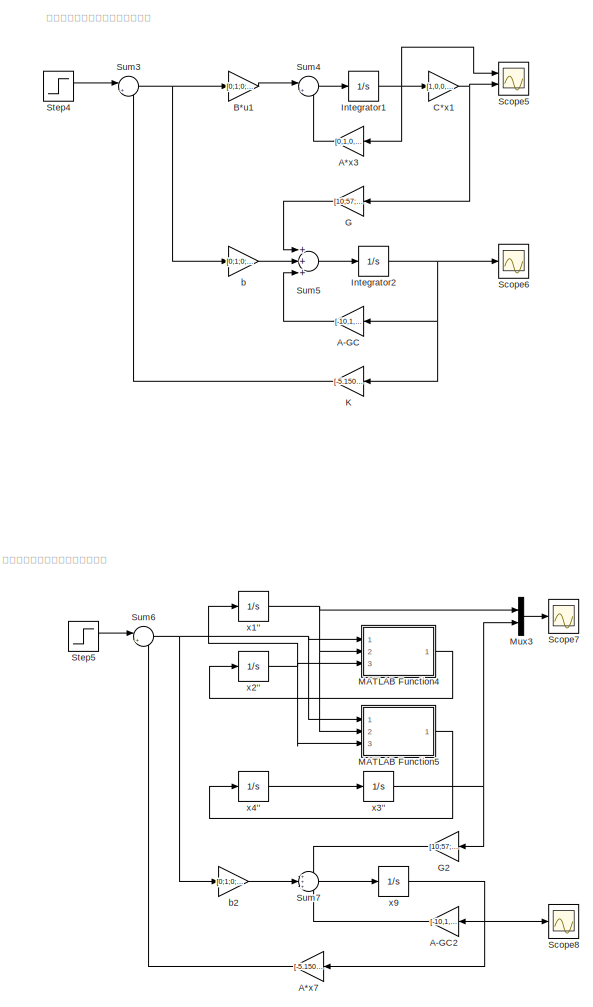
[diagram: root canvas - part 1/4, center side, full height]
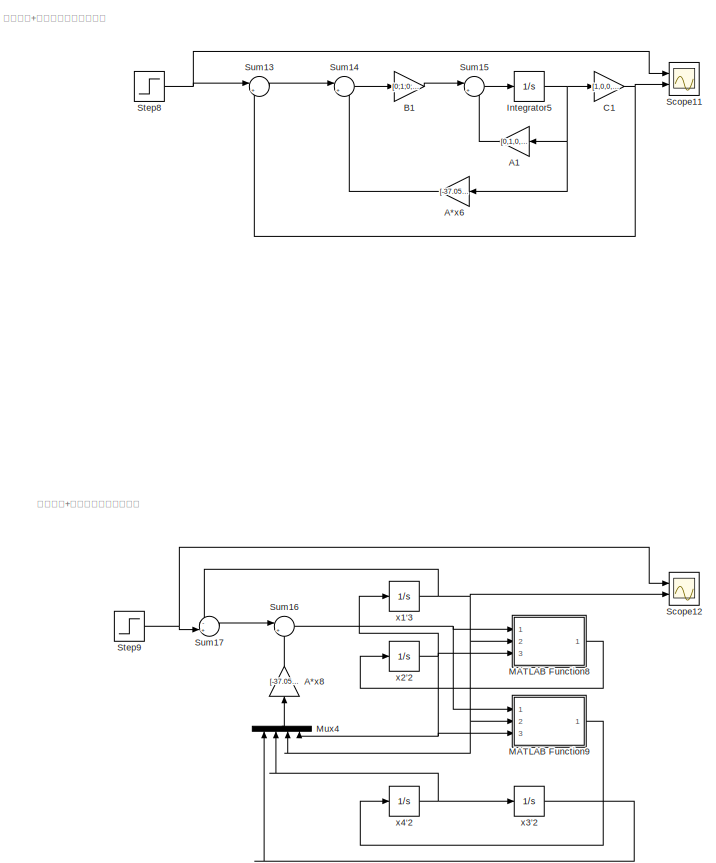
[diagram: root canvas - part 2/4, center side, full height]
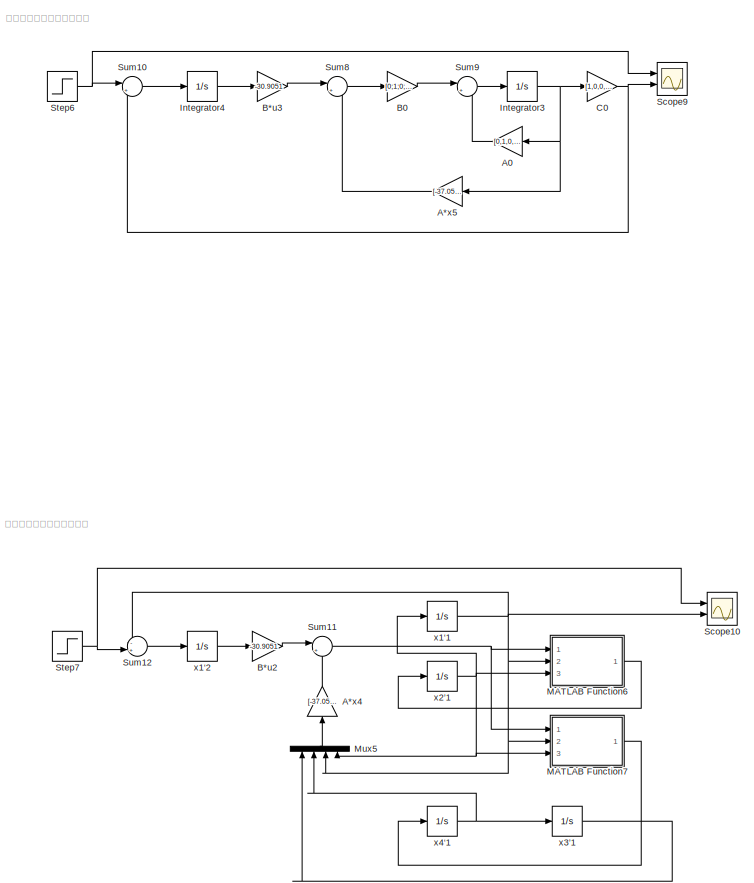
[diagram: root canvas - part 3/4, right side, full height]
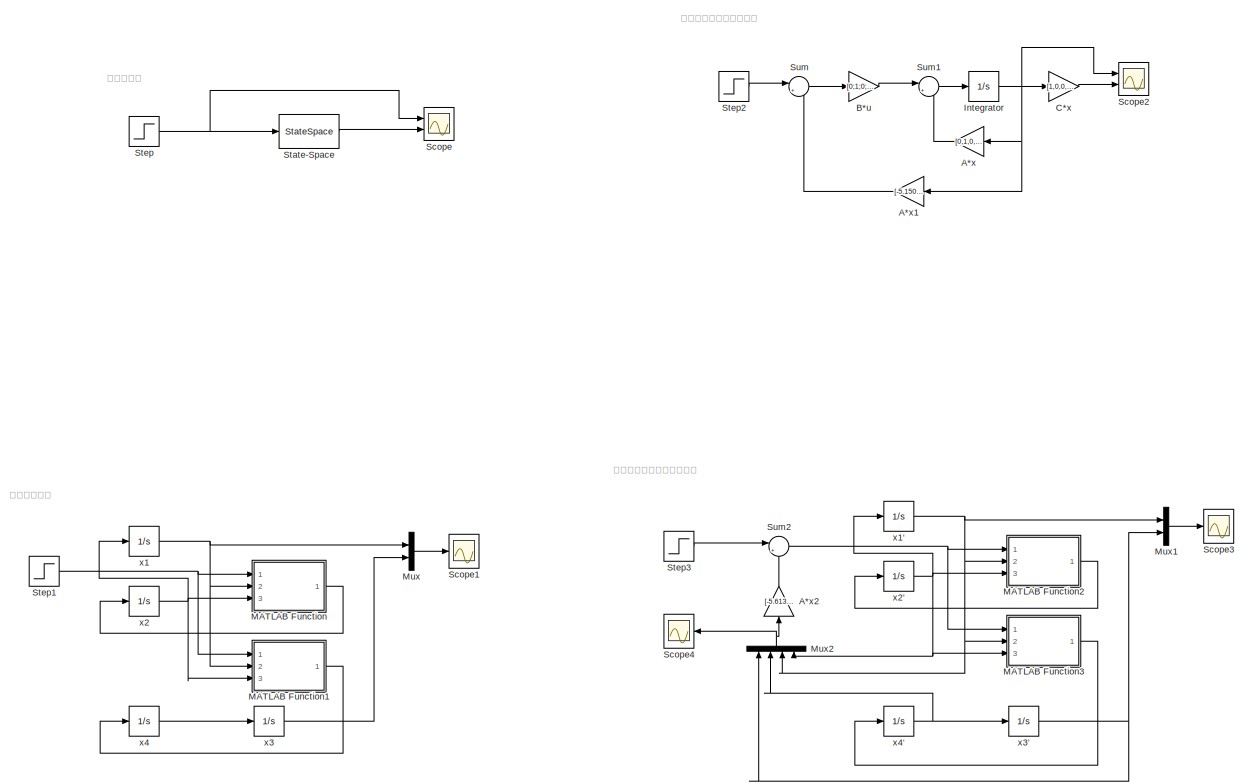
[diagram: root canvas - part 4/4, left side, full height]
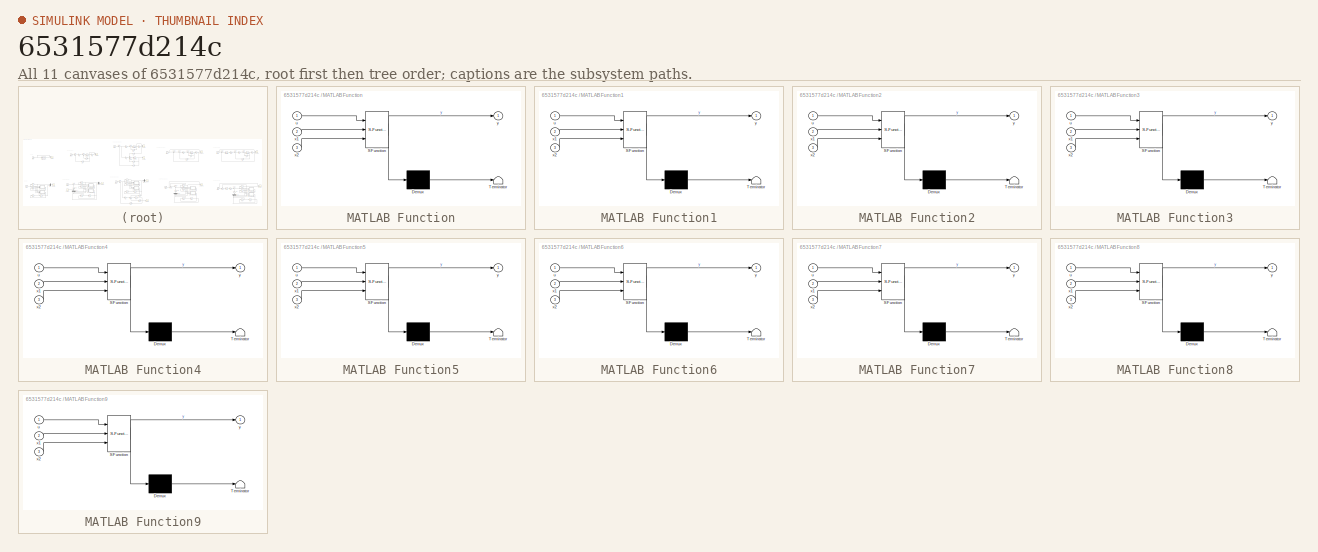
[diagram: thumbnail index - all 11 canvases of the model, root first then tree order]
MODEL slx_6531577d214c
KIND model
CONFIG AbsTol = auto
CONFIG EnableMultiTasking = off
CONFIG FixedStep = auto
CONFIG MaxStep = auto
CONFIG MinStep = auto
CONFIG RelTol = 1e-3
CONFIG SampleTimeConstraint = Unconstrained
CONFIG Solver = ode113
CONFIG SolverName = ode113
CONFIG StartTime = 0.0
CONFIG StopTime = 100
BLOCK [Gain] A*x
  Gain = [0,1,0,0;0,0,-1,0;0,0,0,1;0,0,22,0]
  Multiplication = Matrix(K*u)
  OutDataTypeStr = Inherit: Inherit via internal rule
  ParamDataTypeStr = Inherit: Inherit via internal rule
  SaturateOnIntegerOverflow = off
BLOCK [Gain] A*x1
  Gain = [-5.1509,-5.3170,-45.0062,-9.6585]
  Multiplication = Matrix(K*u)
  OutDataTypeStr = Inherit: Inherit via internal rule
  ParamDataTypeStr = Inherit: Inherit via internal rule
  SaturateOnIntegerOverflow = off
BLOCK [Gain] A*x2
  Gain = [-5.6134,-7.8618,-51.9574,-11.3654]
  Multiplication = Matrix(K*u)
  OutDataTypeStr = Inherit: Inherit via internal rule
  ParamDataTypeStr = Inherit: Inherit via internal rule
  SaturateOnIntegerOverflow = off
BLOCK [Gain] A*x3
  Gain = [0,1,0,0;0,0,-1,0;0,0,0,1;0,0,22,0]
  Multiplication = Matrix(K*u)
  OutDataTypeStr = Inherit: Inherit via internal rule
  ParamDataTypeStr = Inherit: Inherit via internal rule
  SaturateOnIntegerOverflow = off
BLOCK [Gain] A*x4
  Gain = [-37.0526,-25.7207,-102.9571,-22.8603]
  Multiplication = Matrix(K*u)
  OutDataTypeStr = Inherit: Inherit via internal rule
  ParamDataTypeStr = Inherit: Inherit via internal rule
  SaturateOnIntegerOverflow = off
BLOCK [Gain] A*x5
  Gain = [-37.0526,-25.7207,-102.9571,-22.8603]
  Multiplication = Matrix(K*u)
  OutDataTypeStr = Inherit: Inherit via internal rule
  ParamDataTypeStr = Inherit: Inherit via internal rule
  SaturateOnIntegerOverflow = off
BLOCK [Gain] A*x6
  Gain = [-37.0526,-25.7207,-102.9571,-22.8603]
  Multiplication = Matrix(K*u)
  OutDataTypeStr = Inherit: Inherit via internal rule
  ParamDataTypeStr = Inherit: Inherit via internal rule
  SaturateOnIntegerOverflow = off
BLOCK [Gain] A*x7
  Gain = [-5.1509,-5.3170,-45.0062,-9.6585]
  Multiplication = Matrix(K*u)
  OutDataTypeStr = Inherit: Inherit via internal rule
  ParamDataTypeStr = Inherit: Inherit via internal rule
  SaturateOnIntegerOverflow = off
BLOCK [Gain] A*x8
  Gain = [-37.0526,-25.7207,-102.9571,-22.8603]
  Multiplication = Matrix(K*u)
  OutDataTypeStr = Inherit: Inherit via internal rule
  ParamDataTypeStr = Inherit: Inherit via internal rule
  SaturateOnIntegerOverflow = off
BLOCK [Gain] A-GC
  Gain = [-10,1,0,0;-57,0,-1,0;270,0,0,1;1278,0,22,0]
  Multiplication = Matrix(K*u)
  OutDataTypeStr = Inherit: Inherit via internal rule
  ParamDataTypeStr = Inherit: Inherit via internal rule
  SaturateOnIntegerOverflow = off
BLOCK [Gain] A-GC2
  Gain = [-10,1,0,0;-57,0,-1,0;270,0,0,1;1278,0,22,0]
  Multiplication = Matrix(K*u)
  OutDataTypeStr = Inherit: Inherit via internal rule
  ParamDataTypeStr = Inherit: Inherit via internal rule
  SaturateOnIntegerOverflow = off
BLOCK [Gain] A0
  Gain = [0,1,0,0;0,0,-1,0;0,0,0,1;0,0,22,0]
  Multiplication = Matrix(K*u)
  OutDataTypeStr = Inherit: Inherit via internal rule
  ParamDataTypeStr = Inherit: Inherit via internal rule
  SaturateOnIntegerOverflow = off
BLOCK [Gain] A1
  Gain = [0,1,0,0;0,0,-1,0;0,0,0,1;0,0,22,0]
  Multiplication = Matrix(K*u)
  OutDataTypeStr = Inherit: Inherit via internal rule
  ParamDataTypeStr = Inherit: Inherit via internal rule
  SaturateOnIntegerOverflow = off
BLOCK [Gain] B*u
  Gain = [0;1;0;-2]
  Multiplication = Matrix(K*u)
  OutDataTypeStr = Inherit: Inherit via internal rule
  ParamDataTypeStr = Inherit: Inherit via internal rule
  SaturateOnIntegerOverflow = off
BLOCK [Gain] B*u1
  Gain = [0;1;0;-2]
  Multiplication = Matrix(K*u)
  OutDataTypeStr = Inherit: Inherit via internal rule
  ParamDataTypeStr = Inherit: Inherit via internal rule
  SaturateOnIntegerOverflow = off
BLOCK [Gain] B*u2
  Gain = -30.9051
  Multiplication = Matrix(K*u)
  OutDataTypeStr = Inherit: Inherit via internal rule
  ParamDataTypeStr = Inherit: Inherit via internal rule
  SaturateOnIntegerOverflow = off
BLOCK [Gain] B*u3
  Gain = -30.9051
  Multiplication = Matrix(K*u)
  OutDataTypeStr = Inherit: Inherit via internal rule
  ParamDataTypeStr = Inherit: Inherit via internal rule
  SaturateOnIntegerOverflow = off
BLOCK [Gain] B0
  Gain = [0;1;0;-2]
  Multiplication = Matrix(K*u)
  OutDataTypeStr = Inherit: Inherit via internal rule
  ParamDataTypeStr = Inherit: Inherit via internal rule
  SaturateOnIntegerOverflow = off
BLOCK [Gain] B1
  Gain = [0;1;0;-2]
  Multiplication = Matrix(K*u)
  OutDataTypeStr = Inherit: Inherit via internal rule
  ParamDataTypeStr = Inherit: Inherit via internal rule
  SaturateOnIntegerOverflow = off
BLOCK [Gain] C*x
  Gain = [1,0,0,0]
  Multiplication = Matrix(K*u)
  OutDataTypeStr = Inherit: Inherit via internal rule
  ParamDataTypeStr = Inherit: Inherit via internal rule
  SaturateOnIntegerOverflow = off
BLOCK [Gain] C*x1
  Gain = [1,0,0,0]
  Multiplication = Matrix(K*u)
  OutDataTypeStr = Inherit: Inherit via internal rule
  ParamDataTypeStr = Inherit: Inherit via internal rule
  SaturateOnIntegerOverflow = off
BLOCK [Gain] C0
  Gain = [1,0,0,0]
  Multiplication = Matrix(K*u)
  OutDataTypeStr = Inherit: Inherit via internal rule
  ParamDataTypeStr = Inherit: Inherit via internal rule
  SaturateOnIntegerOverflow = off
BLOCK [Gain] C1
  Gain = [1,0,0,0]
  Multiplication = Matrix(K*u)
  OutDataTypeStr = Inherit: Inherit via internal rule
  ParamDataTypeStr = Inherit: Inherit via internal rule
  SaturateOnIntegerOverflow = off
BLOCK [Gain] G
  Gain = [10;57;-270;-1278]
  Multiplication = Matrix(K*u)
  OutDataTypeStr = Inherit: Inherit via internal rule
  ParamDataTypeStr = Inherit: Inherit via internal rule
  SaturateOnIntegerOverflow = off
BLOCK [Gain] G2
  Gain = [10;57;-270;-1278]
  Multiplication = Matrix(K*u)
  OutDataTypeStr = Inherit: Inherit via internal rule
  ParamDataTypeStr = Inherit: Inherit via internal rule
  SaturateOnIntegerOverflow = off
BLOCK [Integrator] Integrator
  InitialCondition = [0.1,0.1,0.1,0.1]
  Ports = [1, 1]
BLOCK [Integrator] Integrator1
  InitialCondition = [0.1,0.1,0.1,0.1]
  Ports = [1, 1]
BLOCK [Integrator] Integrator2
  InitialCondition = [0.1,0.1,0.1,0.1]
  Ports = [1, 1]
BLOCK [Integrator] Integrator3
  InitialCondition = [0,0,0,0]
  Ports = [1, 1]
BLOCK [Integrator] Integrator4
  Ports = [1, 1]
BLOCK [Integrator] Integrator5
  InitialCondition = [0.1,0.1,0.1,0.1]
  Ports = [1, 1]
BLOCK [Gain] K
  Gain = [-5.1509,-5.3170,-45.0062,-9.6585]
  Multiplication = Matrix(K*u)
  OutDataTypeStr = Inherit: Inherit via internal rule
  ParamDataTypeStr = Inherit: Inherit via internal rule
  SaturateOnIntegerOverflow = off
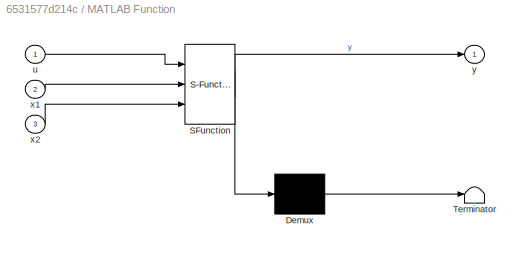
BLOCK [SubSystem] MATLAB Function
  ErrorFcn = Stateflow.Translate.translate
  PermitHierarchicalResolution = ExplicitOnly
  Ports = [3, 1]
  RequestExecContextInheritance = off
  SFBlockType = MATLAB Function
  TreatAsAtomicUnit = on
BLOCK [Demux] MATLAB Function/ Demux 
  Outputs = 1
  Ports = [1, 1]
BLOCK [S-Function] MATLAB Function/ SFunction 
  EnableBusSupport = on
  FunctionName = sf_sfun
  PortCounts = [3 2]
  Ports = [3, 2]
  SFcnIsStateOwnerBlock = off
  SFunctionDeploymentMode = off
  Tag = Stateflow S-Function InvertedPendulum_sim 2
BLOCK [Terminator] MATLAB Function/ Terminator 
BLOCK [Inport] MATLAB Function/u
  IconDisplay = Port number
BLOCK [Inport] MATLAB Function/x1
  IconDisplay = Port number
  Port = 2
BLOCK [Inport] MATLAB Function/x2
  IconDisplay = Port number
  Port = 3
BLOCK [Outport] MATLAB Function/y
  IconDisplay = Port number
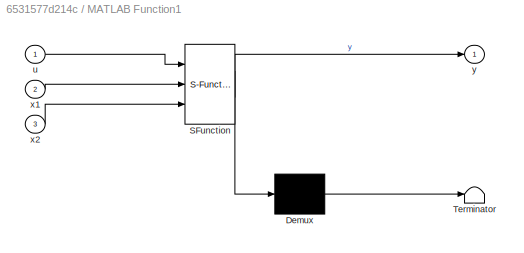
BLOCK [SubSystem] MATLAB Function1
  ErrorFcn = Stateflow.Translate.translate
  PermitHierarchicalResolution = ExplicitOnly
  Ports = [3, 1]
  RequestExecContextInheritance = off
  SFBlockType = MATLAB Function
  TreatAsAtomicUnit = on
BLOCK [Demux] MATLAB Function1/ Demux 
  Outputs = 1
  Ports = [1, 1]
BLOCK [S-Function] MATLAB Function1/ SFunction 
  EnableBusSupport = on
  FunctionName = sf_sfun
  PortCounts = [3 2]
  Ports = [3, 2]
  SFcnIsStateOwnerBlock = off
  SFunctionDeploymentMode = off
  Tag = Stateflow S-Function InvertedPendulum_sim 1
BLOCK [Terminator] MATLAB Function1/ Terminator 
BLOCK [Inport] MATLAB Function1/u
  IconDisplay = Port number
BLOCK [Inport] MATLAB Function1/x1
  IconDisplay = Port number
  Port = 2
BLOCK [Inport] MATLAB Function1/x2
  IconDisplay = Port number
  Port = 3
BLOCK [Outport] MATLAB Function1/y
  IconDisplay = Port number
BLOCK [SubSystem] MATLAB Function2
  ErrorFcn = Stateflow.Translate.translate
  PermitHierarchicalResolution = ExplicitOnly
  Ports = [3, 1]
  RequestExecContextInheritance = off
  SFBlockType = MATLAB Function
  TreatAsAtomicUnit = on
BLOCK [Demux] MATLAB Function2/ Demux 
  Outputs = 1
  Ports = [1, 1]
BLOCK [S-Function] MATLAB Function2/ SFunction 
  EnableBusSupport = on
  FunctionName = sf_sfun
  PortCounts = [3 2]
  Ports = [3, 2]
  SFcnIsStateOwnerBlock = off
  SFunctionDeploymentMode = off
  Tag = Stateflow S-Function InvertedPendulum_sim 3
BLOCK [Terminator] MATLAB Function2/ Terminator 
BLOCK [Inport] MATLAB Function2/u
  IconDisplay = Port number
BLOCK [Inport] MATLAB Function2/x1
  IconDisplay = Port number
  Port = 2
BLOCK [Inport] MATLAB Function2/x2
  IconDisplay = Port number
  Port = 3
BLOCK [Outport] MATLAB Function2/y
  IconDisplay = Port number
BLOCK [SubSystem] MATLAB Function3
  ErrorFcn = Stateflow.Translate.translate
  PermitHierarchicalResolution = ExplicitOnly
  Ports = [3, 1]
  RequestExecContextInheritance = off
  SFBlockType = MATLAB Function
  TreatAsAtomicUnit = on
BLOCK [Demux] MATLAB Function3/ Demux 
  Outputs = 1
  Ports = [1, 1]
BLOCK [S-Function] MATLAB Function3/ SFunction 
  EnableBusSupport = on
  FunctionName = sf_sfun
  PortCounts = [3 2]
  Ports = [3, 2]
  SFcnIsStateOwnerBlock = off
  SFunctionDeploymentMode = off
  Tag = Stateflow S-Function InvertedPendulum_sim 4
BLOCK [Terminator] MATLAB Function3/ Terminator 
BLOCK [Inport] MATLAB Function3/u
  IconDisplay = Port number
BLOCK [Inport] MATLAB Function3/x1
  IconDisplay = Port number
  Port = 2
BLOCK [Inport] MATLAB Function3/x2
  IconDisplay = Port number
  Port = 3
BLOCK [Outport] MATLAB Function3/y
  IconDisplay = Port number
BLOCK [SubSystem] MATLAB Function4
  ErrorFcn = Stateflow.Translate.translate
  PermitHierarchicalResolution = ExplicitOnly
  Ports = [3, 1]
  RequestExecContextInheritance = off
  SFBlockType = MATLAB Function
  TreatAsAtomicUnit = on
BLOCK [Demux] MATLAB Function4/ Demux 
  Outputs = 1
  Ports = [1, 1]
BLOCK [S-Function] MATLAB Function4/ SFunction 
  EnableBusSupport = on
  FunctionName = sf_sfun
  PortCounts = [3 2]
  Ports = [3, 2]
  SFcnIsStateOwnerBlock = off
  SFunctionDeploymentMode = off
  Tag = Stateflow S-Function InvertedPendulum_sim 5
BLOCK [Terminator] MATLAB Function4/ Terminator 
BLOCK [Inport] MATLAB Function4/u
  IconDisplay = Port number
BLOCK [Inport] MATLAB Function4/x1
  IconDisplay = Port number
  Port = 2
BLOCK [Inport] MATLAB Function4/x2
  IconDisplay = Port number
  Port = 3
BLOCK [Outport] MATLAB Function4/y
  IconDisplay = Port number
BLOCK [SubSystem] MATLAB Function5
  ErrorFcn = Stateflow.Translate.translate
  PermitHierarchicalResolution = ExplicitOnly
  Ports = [3, 1]
  RequestExecContextInheritance = off
  SFBlockType = MATLAB Function
  TreatAsAtomicUnit = on
BLOCK [Demux] MATLAB Function5/ Demux 
  Outputs = 1
  Ports = [1, 1]
BLOCK [S-Function] MATLAB Function5/ SFunction 
  EnableBusSupport = on
  FunctionName = sf_sfun
  PortCounts = [3 2]
  Ports = [3, 2]
  SFcnIsStateOwnerBlock = off
  SFunctionDeploymentMode = off
  Tag = Stateflow S-Function InvertedPendulum_sim 6
BLOCK [Terminator] MATLAB Function5/ Terminator 
BLOCK [Inport] MATLAB Function5/u
  IconDisplay = Port number
BLOCK [Inport] MATLAB Function5/x1
  IconDisplay = Port number
  Port = 2
BLOCK [Inport] MATLAB Function5/x2
  IconDisplay = Port number
  Port = 3
BLOCK [Outport] MATLAB Function5/y
  IconDisplay = Port number
BLOCK [SubSystem] MATLAB Function6
  ErrorFcn = Stateflow.Translate.translate
  PermitHierarchicalResolution = ExplicitOnly
  Ports = [3, 1]
  RequestExecContextInheritance = off
  SFBlockType = MATLAB Function
  TreatAsAtomicUnit = on
BLOCK [Demux] MATLAB Function6/ Demux 
  Outputs = 1
  Ports = [1, 1]
BLOCK [S-Function] MATLAB Function6/ SFunction 
  EnableBusSupport = on
  FunctionName = sf_sfun
  PortCounts = [3 2]
  Ports = [3, 2]
  SFcnIsStateOwnerBlock = off
  SFunctionDeploymentMode = off
  Tag = Stateflow S-Function InvertedPendulum_sim 7
BLOCK [Terminator] MATLAB Function6/ Terminator 
BLOCK [Inport] MATLAB Function6/u
  IconDisplay = Port number
BLOCK [Inport] MATLAB Function6/x1
  IconDisplay = Port number
  Port = 2
BLOCK [Inport] MATLAB Function6/x2
  IconDisplay = Port number
  Port = 3
BLOCK [Outport] MATLAB Function6/y
  IconDisplay = Port number
BLOCK [SubSystem] MATLAB Function7
  ErrorFcn = Stateflow.Translate.translate
  PermitHierarchicalResolution = ExplicitOnly
  Ports = [3, 1]
  RequestExecContextInheritance = off
  SFBlockType = MATLAB Function
  TreatAsAtomicUnit = on
BLOCK [Demux] MATLAB Function7/ Demux 
  Outputs = 1
  Ports = [1, 1]
BLOCK [S-Function] MATLAB Function7/ SFunction 
  EnableBusSupport = on
  FunctionName = sf_sfun
  PortCounts = [3 2]
  Ports = [3, 2]
  SFcnIsStateOwnerBlock = off
  SFunctionDeploymentMode = off
  Tag = Stateflow S-Function InvertedPendulum_sim 8
BLOCK [Terminator] MATLAB Function7/ Terminator 
BLOCK [Inport] MATLAB Function7/u
  IconDisplay = Port number
BLOCK [Inport] MATLAB Function7/x1
  IconDisplay = Port number
  Port = 2
BLOCK [Inport] MATLAB Function7/x2
  IconDisplay = Port number
  Port = 3
BLOCK [Outport] MATLAB Function7/y
  IconDisplay = Port number
BLOCK [SubSystem] MATLAB Function8
  ErrorFcn = Stateflow.Translate.translate
  PermitHierarchicalResolution = ExplicitOnly
  Ports = [3, 1]
  RequestExecContextInheritance = off
  SFBlockType = MATLAB Function
  TreatAsAtomicUnit = on
BLOCK [Demux] MATLAB Function8/ Demux 
  Outputs = 1
  Ports = [1, 1]
BLOCK [S-Function] MATLAB Function8/ SFunction 
  EnableBusSupport = on
  FunctionName = sf_sfun
  PortCounts = [3 2]
  Ports = [3, 2]
  SFcnIsStateOwnerBlock = off
  SFunctionDeploymentMode = off
  Tag = Stateflow S-Function InvertedPendulum_sim 9
BLOCK [Terminator] MATLAB Function8/ Terminator 
BLOCK [Inport] MATLAB Function8/u
  IconDisplay = Port number
BLOCK [Inport] MATLAB Function8/x1
  IconDisplay = Port number
  Port = 2
BLOCK [Inport] MATLAB Function8/x2
  IconDisplay = Port number
  Port = 3
BLOCK [Outport] MATLAB Function8/y
  IconDisplay = Port number
BLOCK [SubSystem] MATLAB Function9
  ErrorFcn = Stateflow.Translate.translate
  PermitHierarchicalResolution = ExplicitOnly
  Ports = [3, 1]
  RequestExecContextInheritance = off
  SFBlockType = MATLAB Function
  TreatAsAtomicUnit = on
BLOCK [Demux] MATLAB Function9/ Demux 
  Outputs = 1
  Ports = [1, 1]
BLOCK [S-Function] MATLAB Function9/ SFunction 
  EnableBusSupport = on
  FunctionName = sf_sfun
  PortCounts = [3 2]
  Ports = [3, 2]
  SFcnIsStateOwnerBlock = off
  SFunctionDeploymentMode = off
  Tag = Stateflow S-Function InvertedPendulum_sim 10
BLOCK [Terminator] MATLAB Function9/ Terminator 
BLOCK [Inport] MATLAB Function9/u
  IconDisplay = Port number
BLOCK [Inport] MATLAB Function9/x1
  IconDisplay = Port number
  Port = 2
BLOCK [Inport] MATLAB Function9/x2
  IconDisplay = Port number
  Port = 3
BLOCK [Outport] MATLAB Function9/y
  IconDisplay = Port number
BLOCK [Mux] Mux
  DisplayOption = bar
  Inputs = 2
  Ports = [2, 1]
BLOCK [Mux] Mux1
  DisplayOption = bar
  Inputs = 2
  Ports = [2, 1]
BLOCK [Mux] Mux2
  DisplayOption = bar
  Ports = [4, 1]
BLOCK [Mux] Mux3
  DisplayOption = bar
  Inputs = 2
  Ports = [2, 1]
BLOCK [Mux] Mux4
  DisplayOption = bar
  Ports = [4, 1]
BLOCK [Mux] Mux5
  DisplayOption = bar
  Ports = [4, 1]
BLOCK [Scope] Scope
  Floating = off
  NumInputPorts = 2
  Ports = [2]
  ScopeSpecificationString = Simulink.scopes.TimeScopeBlockCfg('CurrentConfiguration', extmgr.ConfigurationSet(extmgr.Configuration('Core','General UI',true,'FigureColor',[1 1 1]),extmgr.Configuration('Core','Source UI',true),extmgr.Configuration('Sources','WiredSimulink',true),extmgr.Configuration('Visuals','Time Domain',true,'SerializedDisplays',{struct('MinYLimReal','-1519873564124995704783532519617758466556224917925125024...<+3011ch>
BLOCK [Scope] Scope1
  Floating = off
  NumInputPorts = 1
  Ports = [1]
  ScopeSpecificationString = Simulink.scopes.TimeScopeBlockCfg('CurrentConfiguration', extmgr.ConfigurationSet(extmgr.Configuration('Core','General UI',true,'FigureColor',[1 1 1]),extmgr.Configuration('Core','Source UI',true),extmgr.Configuration('Sources','WiredSimulink',true,'DataLoggingVariableName','ScopeData7'),extmgr.Configuration('Visuals','Time Domain',true,'SerializedDisplays',{struct('MinYLimReal','-47.43686','MaxYL...<+1439ch>
BLOCK [Scope] Scope10
  Floating = off
  NumInputPorts = 2
  Ports = [2]
  ScopeSpecificationString = Simulink.scopes.TimeScopeBlockCfg('CurrentConfiguration', extmgr.ConfigurationSet(extmgr.Configuration('Core','General UI',true,'FigureColor',[1 1 1]),extmgr.Configuration('Core','Source UI',true),extmgr.Configuration('Sources','WiredSimulink',true,'DataLoggingVariableName','ScopeData9'),extmgr.Configuration('Visuals','Time Domain',true,'SerializedDisplays',{struct('MinYLimReal','-0.03724','MaxYLi...<+1513ch>
BLOCK [Scope] Scope11
  Floating = off
  NumInputPorts = 2
  Ports = [2]
  ScopeSpecificationString = Simulink.scopes.TimeScopeBlockCfg('CurrentConfiguration', extmgr.ConfigurationSet(extmgr.Configuration('Core','General UI',true,'FigureColor',[1 1 1]),extmgr.Configuration('Core','Source UI',true),extmgr.Configuration('Sources','WiredSimulink',true,'DataLoggingVariableName','ScopeData10'),extmgr.Configuration('Visuals','Time Domain',true,'SerializedDisplays',{struct('MinYLimReal','-0.03724','MaxYL...<+1512ch>
BLOCK [Scope] Scope12
  Floating = off
  NumInputPorts = 2
  Ports = [2]
  ScopeSpecificationString = Simulink.scopes.TimeScopeBlockCfg('CurrentConfiguration', extmgr.ConfigurationSet(extmgr.Configuration('Core','General UI',true,'FigureColor',[1 1 1]),extmgr.Configuration('Core','Source UI',true),extmgr.Configuration('Sources','WiredSimulink',true,'DataLoggingVariableName','ScopeData11'),extmgr.Configuration('Visuals','Time Domain',true,'SerializedDisplays',{struct('MinYLimReal','-0.03724','MaxYL...<+1514ch>
BLOCK [Scope] Scope2
  Floating = off
  NumInputPorts = 2
  Ports = [2]
  ScopeSpecificationString = Simulink.scopes.TimeScopeBlockCfg('CurrentConfiguration', extmgr.ConfigurationSet(extmgr.Configuration('Core','General UI',true,'FigureColor',[1 1 1]),extmgr.Configuration('Core','Source UI',true),extmgr.Configuration('Sources','WiredSimulink',true,'DataLoggingVariableName','ScopeData1'),extmgr.Configuration('Visuals','Time Domain',true,'SerializedDisplays',{struct('MinYLimReal','-0.67646','MaxYLi...<+1491ch>
BLOCK [Scope] Scope3
  Floating = off
  NumInputPorts = 1
  Ports = [1]
  ScopeSpecificationString = Simulink.scopes.TimeScopeBlockCfg('CurrentConfiguration', extmgr.ConfigurationSet(extmgr.Configuration('Core','General UI',true,'FigureColor',[1 1 1]),extmgr.Configuration('Core','Source UI',true),extmgr.Configuration('Sources','WiredSimulink',true,'DataLoggingVariableName','ScopeData1'),extmgr.Configuration('Visuals','Time Domain',true,'SerializedDisplays',{struct('MinYLimReal','-0.12578','MaxYLi...<+1437ch>
BLOCK [Scope] Scope4
  Floating = off
  NumInputPorts = 1
  Ports = [1]
  ScopeSpecificationString = Simulink.scopes.TimeScopeBlockCfg('CurrentConfiguration', extmgr.ConfigurationSet(extmgr.Configuration('Core','General UI',true,'FigureColor',[0 0 0]),extmgr.Configuration('Core','Source UI',true),extmgr.Configuration('Sources','WiredSimulink',true,'DataLoggingVariableName','ScopeData2'),extmgr.Configuration('Visuals','Time Domain',true,'SerializedDisplays',{struct('MinYLimReal','-0.77324','MaxYLi...<+1337ch>
BLOCK [Scope] Scope5
  Floating = off
  NumInputPorts = 2
  Ports = [2]
  ScopeSpecificationString = Simulink.scopes.TimeScopeBlockCfg('CurrentConfiguration', extmgr.ConfigurationSet(extmgr.Configuration('Core','General UI',true,'FigureColor',[1 1 1]),extmgr.Configuration('Core','Source UI',true),extmgr.Configuration('Sources','WiredSimulink',true,'DataLoggingVariableName','ScopeData3'),extmgr.Configuration('Visuals','Time Domain',true,'SerializedDisplays',{struct('MinYLimReal','-0.67646','MaxYLi...<+1496ch>
BLOCK [Scope] Scope6
  Floating = off
  NumInputPorts = 1
  Ports = [1]
  ScopeSpecificationString = Simulink.scopes.TimeScopeBlockCfg('CurrentConfiguration', extmgr.ConfigurationSet(extmgr.Configuration('Core','General UI',true,'FigureColor',[1 1 1]),extmgr.Configuration('Core','Source UI',true),extmgr.Configuration('Sources','WiredSimulink',true,'DataLoggingVariableName','ScopeData4'),extmgr.Configuration('Visuals','Time Domain',true,'SerializedDisplays',{struct('MinYLimReal','-0.67646','MaxYLi...<+1489ch>
BLOCK [Scope] Scope7
  Floating = off
  NumInputPorts = 1
  Ports = [1]
  ScopeSpecificationString = Simulink.scopes.TimeScopeBlockCfg('CurrentConfiguration', extmgr.ConfigurationSet(extmgr.Configuration('Core','General UI',true,'FigureColor',[1 1 1]),extmgr.Configuration('Core','Source UI',true),extmgr.Configuration('Sources','WiredSimulink',true,'DataLoggingVariableName','ScopeData5'),extmgr.Configuration('Visuals','Time Domain',true,'SerializedDisplays',{struct('MinYLimReal','-0.12968','MaxYLi...<+1441ch>
BLOCK [Scope] Scope8
  Floating = off
  NumInputPorts = 1
  Ports = [1]
  ScopeSpecificationString = Simulink.scopes.TimeScopeBlockCfg('CurrentConfiguration', extmgr.ConfigurationSet(extmgr.Configuration('Core','General UI',true,'FigureColor',[1 1 1]),extmgr.Configuration('Core','Source UI',true),extmgr.Configuration('Sources','WiredSimulink',true,'DataLoggingVariableName','ScopeData6'),extmgr.Configuration('Visuals','Time Domain',true,'SerializedDisplays',{struct('MinYLimReal','-0.67696','MaxYLi...<+1447ch>
BLOCK [Scope] Scope9
  Floating = off
  NumInputPorts = 2
  Ports = [2]
  ScopeSpecificationString = Simulink.scopes.TimeScopeBlockCfg('CurrentConfiguration', extmgr.ConfigurationSet(extmgr.Configuration('Core','General UI',true,'FigureColor',[1 1 1]),extmgr.Configuration('Core','Source UI',true),extmgr.Configuration('Sources','WiredSimulink',true,'DataLoggingVariableName','ScopeData8'),extmgr.Configuration('Visuals','Time Domain',true,'SerializedDisplays',{struct('MinYLimReal','0.27526','MaxYLim...<+1800ch>
BLOCK [StateSpace] State-Space
  A = [0,1,0,0;0,0,-1,0;0,0,0,1;0,0,22,0]
  B = [0;1;0;-2]
  C = [1,0,0,0]
  D = 0
  InitialCondition = [0.1;0.1;0.1;0.1]
  Ports = [1, 1]
BLOCK [Step] Step
  After = 0.01
  SampleTime = 0
BLOCK [Step] Step1
  After = 0.01
  SampleTime = 0
BLOCK [Step] Step2
  After = 0.01
  SampleTime = 0
BLOCK [Step] Step3
  After = 0.01
  SampleTime = 0
BLOCK [Step] Step4
  After = 0.01
  SampleTime = 0
BLOCK [Step] Step5
  After = 0.01
  SampleTime = 0
BLOCK [Step] Step6
  SampleTime = 0
  Time = 3
BLOCK [Step] Step7
  After = 0.05
  SampleTime = 0
BLOCK [Step] Step8
  After = 0.05
  SampleTime = 0
BLOCK [Step] Step9
  After = 0.05
  SampleTime = 0
BLOCK [Sum] Sum
  IconShape = round
  InputSameDT = off
  Inputs = |+-
  OutDataTypeStr = Inherit: Inherit via internal rule
  Ports = [2, 1]
  SaturateOnIntegerOverflow = off
BLOCK [Sum] Sum1
  IconShape = round
  InputSameDT = off
  Inputs = |++
  OutDataTypeStr = Inherit: Inherit via internal rule
  Ports = [2, 1]
  SaturateOnIntegerOverflow = off
BLOCK [Sum] Sum10
  IconShape = round
  InputSameDT = off
  Inputs = |+-
  OutDataTypeStr = Inherit: Inherit via internal rule
  Ports = [2, 1]
  SaturateOnIntegerOverflow = off
BLOCK [Sum] Sum11
  IconShape = round
  InputSameDT = off
  Inputs = |+-
  OutDataTypeStr = Inherit: Inherit via internal rule
  Ports = [2, 1]
  SaturateOnIntegerOverflow = off
BLOCK [Sum] Sum12
  IconShape = round
  InputSameDT = off
  Inputs = -+|
  OutDataTypeStr = Inherit: Inherit via internal rule
  Ports = [2, 1]
  SaturateOnIntegerOverflow = off
BLOCK [Sum] Sum13
  IconShape = round
  InputSameDT = off
  Inputs = |+-
  OutDataTypeStr = Inherit: Inherit via internal rule
  Ports = [2, 1]
  SaturateOnIntegerOverflow = off
BLOCK [Sum] Sum14
  IconShape = round
  InputSameDT = off
  Inputs = |+-
  OutDataTypeStr = Inherit: Inherit via internal rule
  Ports = [2, 1]
  SaturateOnIntegerOverflow = off
BLOCK [Sum] Sum15
  IconShape = round
  InputSameDT = off
  Inputs = |++
  OutDataTypeStr = Inherit: Inherit via internal rule
  Ports = [2, 1]
  SaturateOnIntegerOverflow = off
BLOCK [Sum] Sum16
  IconShape = round
  InputSameDT = off
  Inputs = |+-
  OutDataTypeStr = Inherit: Inherit via internal rule
  Ports = [2, 1]
  SaturateOnIntegerOverflow = off
BLOCK [Sum] Sum17
  IconShape = round
  InputSameDT = off
  Inputs = -+|
  OutDataTypeStr = Inherit: Inherit via internal rule
  Ports = [2, 1]
  SaturateOnIntegerOverflow = off
BLOCK [Sum] Sum2
  IconShape = round
  InputSameDT = off
  Inputs = |+-
  OutDataTypeStr = Inherit: Inherit via internal rule
  Ports = [2, 1]
  SaturateOnIntegerOverflow = off
BLOCK [Sum] Sum3
  IconShape = round
  InputSameDT = off
  Inputs = |+-
  OutDataTypeStr = Inherit: Inherit via internal rule
  Ports = [2, 1]
  SaturateOnIntegerOverflow = off
BLOCK [Sum] Sum4
  IconShape = round
  InputSameDT = off
  Inputs = |++
  OutDataTypeStr = Inherit: Inherit via internal rule
  Ports = [2, 1]
  SaturateOnIntegerOverflow = off
BLOCK [Sum] Sum5
  InputSameDT = off
  Inputs = +++
  OutDataTypeStr = Inherit: Inherit via internal rule
  Ports = [3, 1]
  SaturateOnIntegerOverflow = off
BLOCK [Sum] Sum6
  IconShape = round
  InputSameDT = off
  Inputs = |+-
  OutDataTypeStr = Inherit: Inherit via internal rule
  Ports = [2, 1]
  SaturateOnIntegerOverflow = off
BLOCK [Sum] Sum7
  IconShape = round
  InputSameDT = off
  Inputs = +++
  OutDataTypeStr = Inherit: Inherit via internal rule
  Ports = [3, 1]
  SaturateOnIntegerOverflow = off
BLOCK [Sum] Sum8
  IconShape = round
  InputSameDT = off
  Inputs = |+-
  OutDataTypeStr = Inherit: Inherit via internal rule
  Ports = [2, 1]
  SaturateOnIntegerOverflow = off
BLOCK [Sum] Sum9
  IconShape = round
  InputSameDT = off
  Inputs = |++
  OutDataTypeStr = Inherit: Inherit via internal rule
  Ports = [2, 1]
  SaturateOnIntegerOverflow = off
BLOCK [Gain] b
  Gain = [0;1;0;-2]
  Multiplication = Matrix(K*u)
  OutDataTypeStr = Inherit: Inherit via internal rule
  ParamDataTypeStr = Inherit: Inherit via internal rule
  SaturateOnIntegerOverflow = off
BLOCK [Gain] b2
  Gain = [0;1;0;-2]
  Multiplication = Matrix(K*u)
  OutDataTypeStr = Inherit: Inherit via internal rule
  ParamDataTypeStr = Inherit: Inherit via internal rule
  SaturateOnIntegerOverflow = off
BLOCK [Integrator] x1
  InitialCondition = 0.1
  Ports = [1, 1]
BLOCK [Integrator] x1''
  InitialCondition = 0.1
  Ports = [1, 1]
BLOCK [Integrator] x1‘
  InitialCondition = 0.1
  Ports = [1, 1]
BLOCK [Integrator] x1‘1
  InitialCondition = 0.1
  Ports = [1, 1]
BLOCK [Integrator] x1‘2
  Ports = [1, 1]
BLOCK [Integrator] x1‘3
  InitialCondition = 0.1
  Ports = [1, 1]
BLOCK [Integrator] x2
  InitialCondition = 0.1
  Ports = [1, 1]
BLOCK [Integrator] x2'' 
  InitialCondition = 0.1
  Ports = [1, 1]
BLOCK [Integrator] x2’
  InitialCondition = 0.1
  Ports = [1, 1]
BLOCK [Integrator] x2’1
  InitialCondition = 0.1
  Ports = [1, 1]
BLOCK [Integrator] x2’2
  InitialCondition = 0.1
  Ports = [1, 1]
BLOCK [Integrator] x3
  InitialCondition = 0.1
  Ports = [1, 1]
BLOCK [Integrator] x3''
  InitialCondition = 0.1
  Ports = [1, 1]
BLOCK [Integrator] x3’
  InitialCondition = 0.1
  Ports = [1, 1]
BLOCK [Integrator] x3’1
  InitialCondition = 0.1
  Ports = [1, 1]
BLOCK [Integrator] x3’2
  InitialCondition = 0.1
  Ports = [1, 1]
BLOCK [Integrator] x4
  InitialCondition = 0.1
  Ports = [1, 1]
BLOCK [Integrator] x4''
  InitialCondition = 0.1
  Ports = [1, 1]
BLOCK [Integrator] x4‘
  InitialCondition = 0.1
  Ports = [1, 1]
BLOCK [Integrator] x4‘1
  InitialCondition = 0.1
  Ports = [1, 1]
BLOCK [Integrator] x4‘2
  InitialCondition = 0.1
  Ports = [1, 1]
BLOCK [Integrator] x9
  InitialCondition = 0.1
  Ports = [1, 1]
ANNOTATION (root): 原线性系统
ANNOTATION (root): 原非线性系统
ANNOTATION (root): 带状态观测器的状态反馈线性系统
ANNOTATION (root): 带积分矫正的状态反馈控制
ANNOTATION (root): 引入状态反馈的线性系统
ANNOTATION (root): 引入状态反馈的非线性系统
ANNOTATION (root): 状态反馈+输出反馈下的跟踪控制
LINE A*x1:1 -> Sum:2
LINE A*x2:1 -> Sum2:2
LINE A*x3:1 -> Sum4:2
LINE A*x4:1 -> Sum11:2
LINE A*x5:1 -> Sum8:2
LINE A*x6:1 -> Sum14:2
LINE A*x7:1 -> Sum6:2
LINE A*x8:1 -> Sum16:2
LINE A*x:1 -> Sum1:2
LINE A-GC2:1 -> Sum7:3
LINE A-GC:1 -> Sum5:3
LINE A0:1 -> Sum9:2
LINE A1:1 -> Sum15:2
LINE B*u1:1 -> Sum4:1
LINE B*u2:1 -> Sum11:1
LINE B*u3:1 -> Sum8:1
LINE B*u:1 -> Sum1:1
LINE B0:1 -> Sum9:1
LINE B1:1 -> Sum15:1
NET C*x1:1 -> G:1, Scope5:2
LINE C*x:1 -> Scope2:2
NET C0:1 -> Scope9:2, Sum10:2
NET C1:1 -> Scope11:2, Sum13:2
LINE G2:1 -> Sum7:1
LINE G:1 -> Sum5:1
NET Integrator1:1 -> A*x3:1, C*x1:1, Scope5:1
NET Integrator2:1 -> A-GC:1, K:1, Scope6:1
NET Integrator3:1 -> A*x5:1, A0:1, C0:1
LINE Integrator4:1 -> B*u3:1
NET Integrator5:1 -> A*x6:1, A1:1, C1:1
NET Integrator:1 -> A*x1:1, A*x:1, C*x:1, Scope2:1
LINE K:1 -> Sum3:2
LINE MATLAB Function1:1 -> x4:1
LINE MATLAB Function2:1 -> x2’:1
LINE MATLAB Function3:1 -> x4‘:1
LINE MATLAB Function4:1 -> x2'' :1
LINE MATLAB Function5:1 -> x4'':1
LINE MATLAB Function6:1 -> x2’1:1
LINE MATLAB Function7:1 -> x4‘1:1
LINE MATLAB Function8:1 -> x2’2:1
LINE MATLAB Function9:1 -> x4‘2:1
LINE MATLAB Function:1 -> x2:1
LINE Mux1:1 -> Scope3:1
NET Mux2:1 -> A*x2:1, Scope4:1
LINE Mux3:1 -> Scope7:1
LINE Mux4:1 -> A*x8:1
LINE Mux5:1 -> A*x4:1
LINE Mux:1 -> Scope1:1
LINE State-Space:1 -> Scope:2
NET Step1:1 -> MATLAB Function1:1, MATLAB Function:1
LINE Step2:1 -> Sum:1
LINE Step3:1 -> Sum2:1
LINE Step4:1 -> Sum3:1
LINE Step5:1 -> Sum6:1
NET Step6:1 -> Scope9:1, Sum10:1
NET Step7:1 -> Scope10:1, Sum12:2
NET Step8:1 -> Scope11:1, Sum13:1
NET Step9:1 -> Scope12:1, Sum17:2
NET Step:1 -> Scope:1, State-Space:1
LINE Sum10:1 -> Integrator4:1
NET Sum11:1 -> MATLAB Function6:1, MATLAB Function7:1
LINE Sum12:1 -> x1‘2:1
LINE Sum13:1 -> Sum14:1
LINE Sum14:1 -> B1:1
LINE Sum15:1 -> Integrator5:1
NET Sum16:1 -> MATLAB Function8:1, MATLAB Function9:1
LINE Sum17:1 -> Sum16:1
LINE Sum1:1 -> Integrator:1
NET Sum2:1 -> MATLAB Function2:1, MATLAB Function3:1
NET Sum3:1 -> B*u1:1, b:1
LINE Sum4:1 -> Integrator1:1
LINE Sum5:1 -> Integrator2:1
NET Sum6:1 -> MATLAB Function4:1, MATLAB Function5:1, b2:1
LINE Sum7:1 -> x9:1
LINE Sum8:1 -> B0:1
LINE Sum9:1 -> Integrator3:1
LINE Sum:1 -> B*u:1
LINE b2:1 -> Sum7:2
LINE b:1 -> Sum5:2
NET x1'':1 -> MATLAB Function4:2, MATLAB Function5:2, Mux3:1
NET x1:1 -> MATLAB Function1:2, MATLAB Function:2, Mux:1
NET x1‘1:1 -> MATLAB Function6:2, MATLAB Function7:2, Mux5:3, Scope10:2, Sum12:1
LINE x1‘2:1 -> B*u2:1
NET x1‘3:1 -> MATLAB Function8:2, MATLAB Function9:2, Mux4:3, Scope12:2, Sum17:1
NET x1‘:1 -> MATLAB Function2:2, MATLAB Function3:2, Mux1:1, Mux2:3
NET x2'' :1 -> MATLAB Function4:3, MATLAB Function5:3, x1'':1
NET x2:1 -> MATLAB Function1:3, MATLAB Function:3, x1:1
NET x2’1:1 -> MATLAB Function6:3, MATLAB Function7:3, Mux5:4, x1‘1:1
NET x2’2:1 -> MATLAB Function8:3, MATLAB Function9:3, Mux4:4, x1‘3:1
NET x2’:1 -> MATLAB Function2:3, MATLAB Function3:3, Mux2:4, x1‘:1
NET x3'':1 -> G2:1, Mux3:2
LINE x3:1 -> Mux:2
LINE x3’1:1 -> Mux5:1
LINE x3’2:1 -> Mux4:1
NET x3’:1 -> Mux1:2, Mux2:1
LINE x4'':1 -> x3'':1
LINE x4:1 -> x3:1
NET x4‘1:1 -> Mux5:2, x3’1:1
NET x4‘2:1 -> Mux4:2, x3’2:1
NET x4‘:1 -> Mux2:2, x3’:1
NET x9:1 -> A*x7:1, A-GC2:1, Scope8:1
note: NET lines group one-source signal fan-out (src -> all destinations, sorted); 1:1 wires keep LINE
CHART MATLAB Function1 states=1 transitions=1
  STATE_LABEL 'eML_blk_kernel()'
  STATE_LABEL 'SCRIPT:\nfunction y = fcn(u,x1,x2)\n\ny = (u+0.05*sin(x1*x2*x2)-cos(x1)*sin(x1))/(1.1-0.1*cos(x1)*cos(x1));'
CHART MATLAB Function states=1 transitions=1
  STATE_LABEL 'eML_blk_kernel()'
  STATE_LABEL 'SCRIPT:\nfunction y = fcn(u,x1,x2)\n\ny = (u*cos(x1)-11*sin(x1)+0.05*sin(x1)*cos(x1)*x2*x2)/(0.05*cos(x1)*cos(x1)-0.55);\n'
CHART MATLAB Function2 states=1 transitions=1
  STATE_LABEL 'eML_blk_kernel()'
  STATE_LABEL 'SCRIPT:\nfunction y = fcn(u, x1, x2)\n\ny = (u*cos(x1)-11*sin(x1)+0.05*sin(x1)*cos(x1*x2*x2))/(0.05*cos(x1)*cos(x1)-0.55);'
CHART MATLAB Function3 states=1 transitions=1
  STATE_LABEL 'eML_blk_kernel()'
  STATE_LABEL 'SCRIPT:\nfunction y = fcn(u, x1, x2)\n\ny = (u+0.05*sin(x1*x2*x2)-cos(x1)*sin(x1))/(1.1-0.1*cos(x1)*cos(x1));\n'
CHART MATLAB Function4 states=1 transitions=1
  STATE_LABEL 'eML_blk_kernel()'
  STATE_LABEL 'SCRIPT:\nfunction y = fcn(u,x1,x2)\n\ny = (u*cos(x1)-11*sin(x1)+0.05*sin(x1)*cos(x1)*x2*x2)/(0.05*cos(x1)*cos(x1)-0.55);\n'
CHART MATLAB Function5 states=1 transitions=1
  STATE_LABEL 'eML_blk_kernel()'
  STATE_LABEL 'SCRIPT:\nfunction y = fcn(u,x1,x2)\n\ny = (u+0.05*sin(x1)*x2*x2-cos(x1)*sin(x1))/(1.1-0.1*cos(x1)*cos(x1));'
CHART MATLAB Function6 states=1 transitions=1
  STATE_LABEL 'eML_blk_kernel()'
  STATE_LABEL 'SCRIPT:\nfunction y = fcn(u, x1, x2)\n\ny = (u*cos(x1)-11*sin(x1)+0.05*sin(x1)*cos(x1)*x2*x2)/(0.05*cos(x1)*cos(x1)-0.55);'
CHART MATLAB Function7 states=1 transitions=1
  STATE_LABEL 'eML_blk_kernel()'
  STATE_LABEL 'SCRIPT:\nfunction y = fcn(u, x1, x2)\n\ny = (u+0.05*sin(x1)*x2*x2-cos(x1)*sin(x1))/(1.1-0.1*cos(x1)*cos(x1));\n'
CHART MATLAB Function8 states=1 transitions=1
  STATE_LABEL 'eML_blk_kernel()'
  STATE_LABEL 'SCRIPT:\nfunction y = fcn(u, x1, x2)\n\ny = (u*cos(x1)-11*sin(x1)+0.05*sin(x1)*cos(x1*x2*x2))/(0.05*cos(x1)*cos(x1)-0.55);'
CHART MATLAB Function9 states=1 transitions=1
  STATE_LABEL 'eML_blk_kernel()'
  STATE_LABEL 'SCRIPT:\nfunction y = fcn(u, x1, x2)\n\ny = (u+0.05*sin(x1*x2*x2)-cos(x1)*sin(x1))/(1.1-0.1*cos(x1)*cos(x1));\n'
